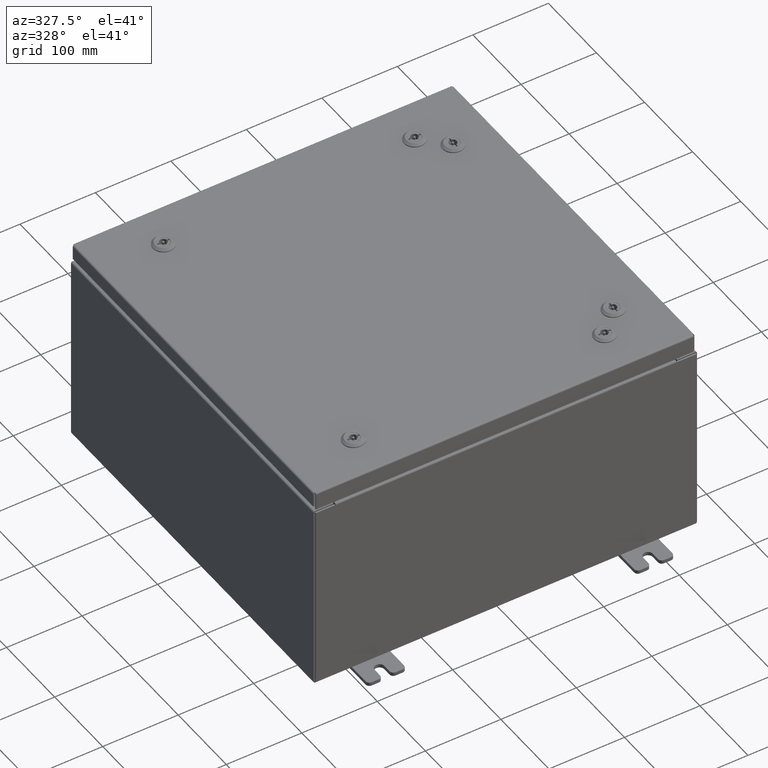
[diagram: clean part render]
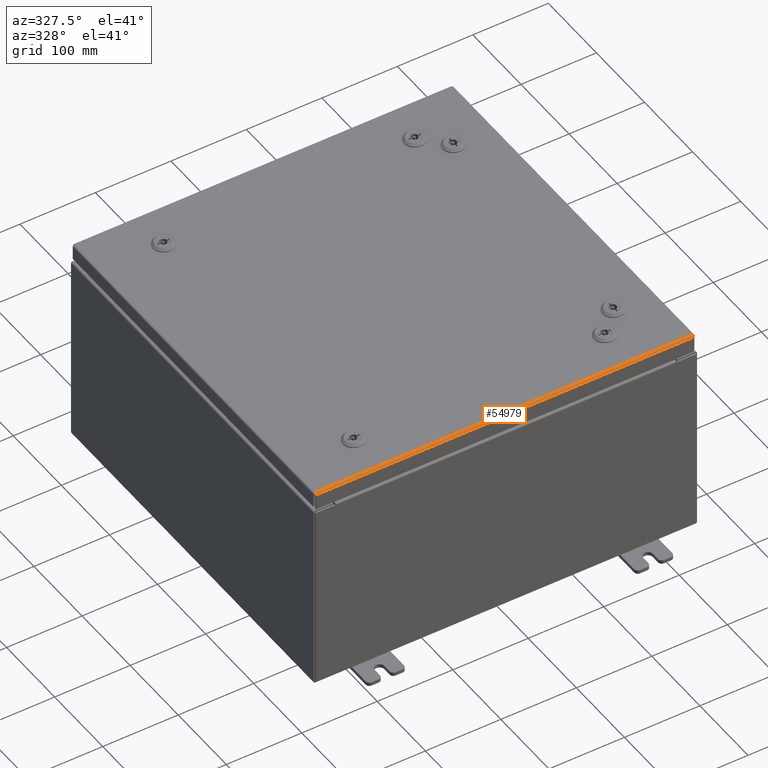
[diagram: same view with one face highlighted and labeled with its STEP entity id]
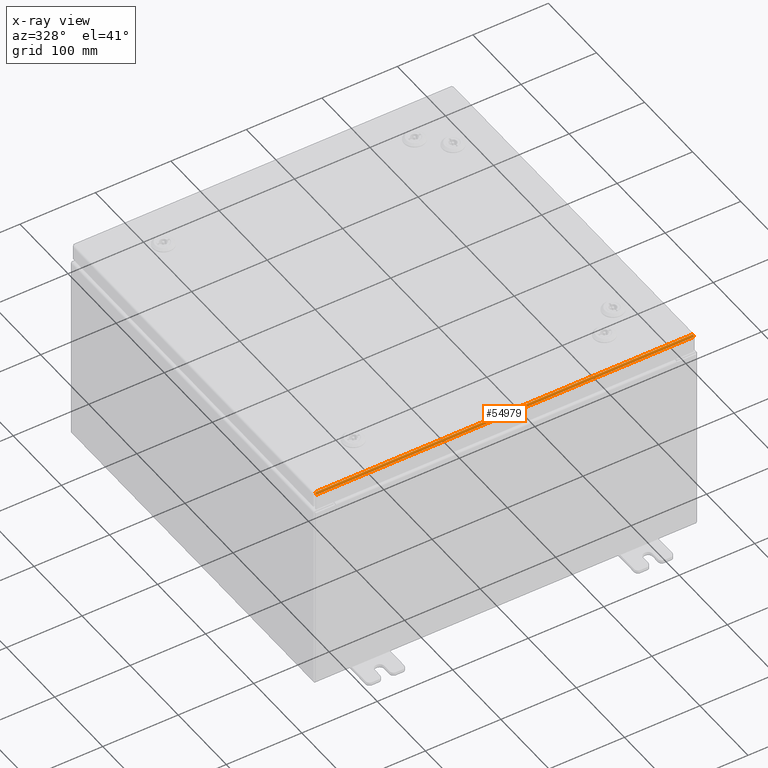
[diagram: x-ray of the same camera — body ghosted, the highlighted face saturated]
A machine part, auxiliary view. The second image highlights one B-rep face of the part: STEP entity #54979.
The next image is the same camera in x-ray: the body ghosted, the highlighted face saturated — about 0% of this face is hidden behind the body in this view.
In plain terms, the highlighted cylindrical surface (edge-blend (fillet) strip) has radius 2.2276 mm, axis along (-1, 0, 0).
Its self-contained STEP definition (entity closure, byte-faithful):
#1355 = ORIENTED_EDGE ( 'NONE', *, *, #60901, .T. ) ;
#1743 = CARTESIAN_POINT ( 'NONE',  ( -9.849419288125421400, -9.893967384578530800, -0.01106893374133176300 ) ) ;
#2948 = EDGE_CURVE ( 'NONE', #40379, #20756, #14958, .T. ) ;
#5231 = CYLINDRICAL_SURFACE ( 'NONE', #26165, 0.08770000000000026400 ) ;
#6641 = CARTESIAN_POINT ( 'NONE',  ( -9.849704822031354100, -9.861279903154994000, -2.045551219865306400E-016 ) ) ;
#8004 = CARTESIAN_POINT ( 'NONE',  ( 9.849704822031352300, -9.861279903154994000, -2.046885130018462200E-016 ) ) ;
#8130 = CARTESIAN_POINT ( 'NONE',  ( 9.937499999999998200, -9.937500000000001800, -0.08770000000000008300 ) ) ;
#10339 = B_SPLINE_CURVE_WITH_KNOTS ( 'NONE', 3,
 ( #16336, #50557, #55524, #26153, #60465, #31046, #1743, #35993, #6641, #40925 ),
 .UNSPECIFIED., .F., .F.,
 ( 4, 2, 2, 2, 4 ),
 ( 0.0000000000000000000, 0.2500000000000000000, 0.5000000000000000000, 0.7500000000000000000, 1.000000000000000000 ),
 .UNSPECIFIED. ) ;
#11282 = CARTESIAN_POINT ( 'NONE',  ( -9.849799999999996600, -9.849800000000001900, -2.048885995248197400E-016 ) ) ;
#12131 = DIRECTION ( 'NONE',  ( 1.000000000000000000, -0.0000000000000000000, -0.0000000000000000000 ) ) ;
#12919 = CARTESIAN_POINT ( 'NONE',  ( 9.849324110156775400, -9.903695747341801700, -0.01756921792167977900 ) ) ;
#14958 = LINE ( 'NONE', #11282, #37932 ) ;
#16336 = CARTESIAN_POINT ( 'NONE',  ( -9.848657864376264100, -9.937500000000001800, -0.08770000000000008300 ) ) ;
#17677 = CARTESIAN_POINT ( 'NONE',  ( 9.849799999999996600, -9.849800000000001900, -2.048885995248197400E-016 ) ) ;
#17883 = CARTESIAN_POINT ( 'NONE',  ( 9.849038576250842800, -9.926431066258670600, -0.04353261542147225700 ) ) ;
#17896 = EDGE_CURVE ( 'NONE', #20756, #47535, #22647, .T. ) ;
#18013 = DIRECTION ( 'NONE',  ( 1.000000000000000000, 3.132763603081818100E-031, -7.843572268217993600E-046 ) ) ;
#20756 = VERTEX_POINT ( 'NONE', #61468 ) ;
#21061 = CARTESIAN_POINT ( 'NONE',  ( -9.849799999999996600, -9.849800000000001900, -0.08770000000000030500 ) ) ;
#22018 = CARTESIAN_POINT ( 'NONE',  ( -9.849799999999996600, -9.849800000000001900, -2.048885995248197400E-016 ) ) ;
#22647 = B_SPLINE_CURVE_WITH_KNOTS ( 'NONE', 3,
 ( #17677, #8004, #37337, #42274, #12919, #47196, #17883, #52110, #22799, #57079 ),
 .UNSPECIFIED., .F., .F.,
 ( 4, 2, 2, 2, 4 ),
 ( 0.0000000000000000000, 0.2500000000000000000, 0.5000000000000000000, 0.7500000000000000000, 1.000000000000000000 ),
 .UNSPECIFIED. ) ;
#22799 = CARTESIAN_POINT ( 'NONE',  ( 9.848753042344910100, -9.937500000000001800, -0.07622009684500739800 ) ) ;
#23627 = VERTEX_POINT ( 'NONE', #37126 ) ;
#23834 = ORIENTED_EDGE ( 'NONE', *, *, #17896, .F. ) ;
#25959 = DIRECTION ( 'NONE',  ( -1.000000000000000000, 0.0000000000000000000, 0.0000000000000000000 ) ) ;
#26153 = CARTESIAN_POINT ( 'NONE',  ( -9.849038576250842800, -9.926431066258668800, -0.04353261542147224300 ) ) ;
#26165 = AXIS2_PLACEMENT_3D ( 'NONE', #21061, #25959, #50375 ) ;
#27255 = CARTESIAN_POINT ( 'NONE',  ( 9.848657864376264100, -9.937500000000001800, -0.08770000000000008300 ) ) ;
#31046 = CARTESIAN_POINT ( 'NONE',  ( -9.849324110156771900, -9.903695747341799900, -0.01756921792167977900 ) ) ;
#35993 = CARTESIAN_POINT ( 'NONE',  ( -9.849609644062709900, -9.872755289458309500, -0.002282596256188921700 ) ) ;
#36459 = VECTOR ( 'NONE', #18013, 39.37007874015748100 ) ;
#37126 = CARTESIAN_POINT ( 'NONE',  ( -9.848657864376264100, -9.937500000000001800, -0.08770000000000008300 ) ) ;
#37337 = CARTESIAN_POINT ( 'NONE',  ( 9.849609644062713400, -9.872755289458313000, -0.002282596256188922100 ) ) ;
#37718 = EDGE_CURVE ( 'NONE', #23627, #40379, #10339, .T. ) ;
#37932 = VECTOR ( 'NONE', #12131, 39.37007874015748100 ) ;
#39106 = EDGE_LOOP ( 'NONE', ( #62882, #56461, #1355, #23834 ) ) ;
#40379 = VERTEX_POINT ( 'NONE', #22018 ) ;
#40925 = CARTESIAN_POINT ( 'NONE',  ( -9.849799999999996600, -9.849800000000001900, -2.048885995248197400E-016 ) ) ;
#42274 = CARTESIAN_POINT ( 'NONE',  ( 9.849419288125419700, -9.893967384578529000, -0.01106893374133176300 ) ) ;
#44322 = FACE_OUTER_BOUND ( 'NONE', #39106, .T. ) ;
#47196 = CARTESIAN_POINT ( 'NONE',  ( 9.849133754219485200, -9.919930782078324700, -0.03380425265820010500 ) ) ;
#47535 = VERTEX_POINT ( 'NONE', #27255 ) ;
#50375 = DIRECTION ( 'NONE',  ( 0.0000000000000000000, -1.000000000000000000, 2.530931008953486200E-015 ) ) ;
#50557 = CARTESIAN_POINT ( 'NONE',  ( -9.848753042344910100, -9.937500000000000000, -0.07622009684500737100 ) ) ;
#52110 = CARTESIAN_POINT ( 'NONE',  ( 9.848848220313550800, -9.935217403743813200, -0.06474471054169124400 ) ) ;
#54979 = ADVANCED_FACE ( 'NONE', ( #44322 ), #5231, .T. ) ;
#55524 = CARTESIAN_POINT ( 'NONE',  ( -9.848848220313552600, -9.935217403743813200, -0.06474471054169123100 ) ) ;
#56461 = ORIENTED_EDGE ( 'NONE', *, *, #37718, .F. ) ;
#57079 = CARTESIAN_POINT ( 'NONE',  ( 9.848657864376264100, -9.937500000000001800, -0.08770000000000008300 ) ) ;
#60465 = CARTESIAN_POINT ( 'NONE',  ( -9.849133754219488800, -9.919930782078322900, -0.03380425265820010500 ) ) ;
#60901 = EDGE_CURVE ( 'NONE', #23627, #47535, #62538, .T. ) ;
#61468 = CARTESIAN_POINT ( 'NONE',  ( 9.849799999999996600, -9.849800000000001900, -2.048885995248197400E-016 ) ) ;
#62538 = LINE ( 'NONE', #8130, #36459 ) ;
#62882 = ORIENTED_EDGE ( 'NONE', *, *, #2948, .F. ) ;